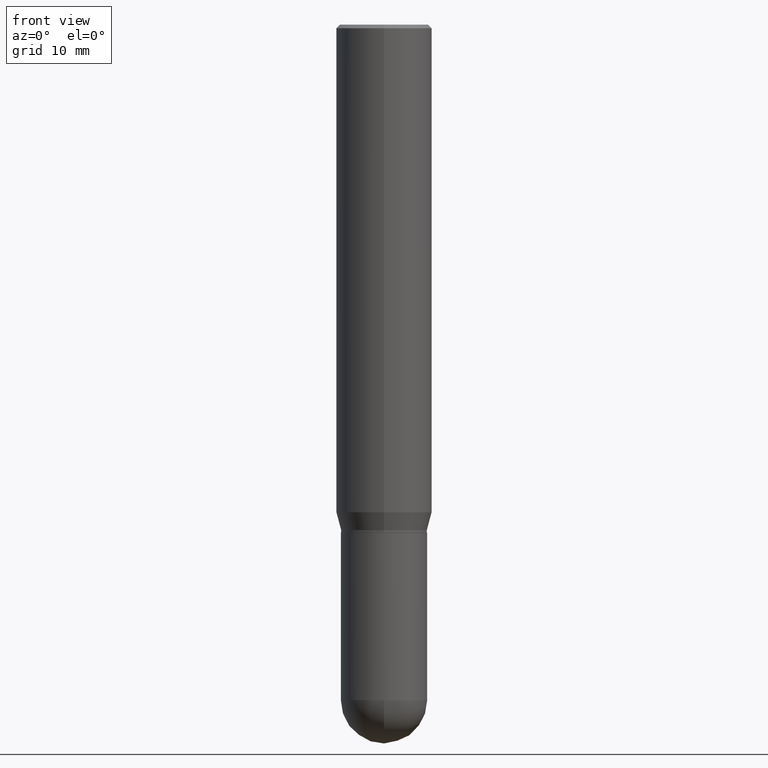
[diagram: clean part render]
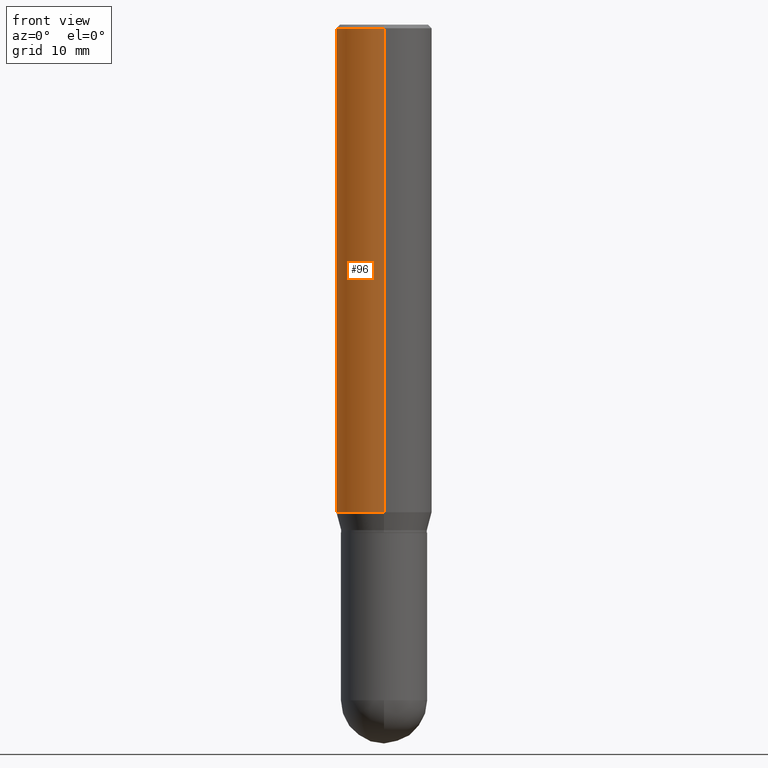
[diagram: same view with one face highlighted and labeled with its STEP entity id]
A machine part, front view. The second image highlights one B-rep face of the part: STEP entity #96.
In plain terms, the highlighted cylindrical surface (partial cylindrical patch) has radius 5 mm, axis along (-0, 0, 1).
Its self-contained STEP definition (entity closure, byte-faithful):
#5 = VECTOR ( 'NONE', #430, 39.37007874015748143 ) ;
#8 = EDGE_CURVE ( 'NONE', #156, #413, #419, .T. ) ;
#14 = VECTOR ( 'NONE', #498, 39.37007874015748143 ) ;
#33 = ORIENTED_EDGE ( 'NONE', *, *, #154, .T. ) ;
#40 = CIRCLE ( 'NONE', #283, 0.1968500000000000250 ) ;
#55 = AXIS2_PLACEMENT_3D ( 'NONE', #252, #136, #333 ) ;
#78 = CARTESIAN_POINT ( 'NONE',  ( 3.668787700533860766E-31, -5.236384983519334795E-17, -0.01500000000000086854 ) ) ;
#96 = ADVANCED_FACE ( 'NONE', ( #242 ), #160, .T. ) ;
#111 = EDGE_LOOP ( 'NONE', ( #129, #402, #33, #411 ) ) ;
#114 = CARTESIAN_POINT ( 'NONE',  ( 0.000000000000000000, 0.000000000000000000, 0.000000000000000000 ) ) ;
#122 = DIRECTION ( 'NONE',  ( -6.982962677686265922E-15, -1.000000000000000000, 3.490923322346020394E-15 ) ) ;
#129 = ORIENTED_EDGE ( 'NONE', *, *, #8, .F. ) ;
#136 = DIRECTION ( 'NONE',  ( -2.445858467022432184E-29, 3.490923322346020788E-15, 1.000000000000000000 ) ) ;
#142 = CARTESIAN_POINT ( 'NONE',  ( 1.398703375343806303E-15, 0.1968499999999999139, -0.01500000000000155549 ) ) ;
#154 = EDGE_CURVE ( 'NONE', #275, #453, #363, .T. ) ;
#156 = VERTEX_POINT ( 'NONE', #324 ) ;
#160 = CYLINDRICAL_SURFACE ( 'NONE', #442, 0.1968499999999999694 ) ;
#163 = CARTESIAN_POINT ( 'NONE',  ( -1.374596203102541214E-15, -0.1968499999999999694, 6.871882560038140128E-16 ) ) ;
#165 = DIRECTION ( 'NONE',  ( -2.445858467022432184E-29, 3.490923322346020788E-15, 1.000000000000000000 ) ) ;
#166 = EDGE_CURVE ( 'NONE', #413, #453, #40, .T. ) ;
#168 = DIRECTION ( 'NONE',  ( -2.445858467022432184E-29, 3.490923322346020788E-15, 1.000000000000000000 ) ) ;
#235 = EDGE_CURVE ( 'NONE', #156, #275, #293, .T. ) ;
#242 = FACE_OUTER_BOUND ( 'NONE', #111, .T. ) ;
#252 = CARTESIAN_POINT ( 'NONE',  ( 4.899491337544596904E-29, -6.992942890390830746E-15, -2.003178599090893464 ) ) ;
#275 = VERTEX_POINT ( 'NONE', #451 ) ;
#283 = AXIS2_PLACEMENT_3D ( 'NONE', #78, #165, #392 ) ;
#293 = CIRCLE ( 'NONE', #55, 0.1968499999999999694 ) ;
#324 = CARTESIAN_POINT ( 'NONE',  ( 1.398703375343805514E-15, 0.1968499999999929750, -2.003178599090894352 ) ) ;
#333 = DIRECTION ( 'NONE',  ( -6.982962677686265922E-15, -1.000000000000000000, 4.163344669033675634E-15 ) ) ;
#354 = CARTESIAN_POINT ( 'NONE',  ( 1.398703375343756802E-15, 0.1968499999999999694, -6.871882560038140128E-16 ) ) ;
#363 = LINE ( 'NONE', #163, #5 ) ;
#392 = DIRECTION ( 'NONE',  ( -6.982962677686265133E-15, -1.000000000000000000, 3.491137977679279424E-15 ) ) ;
#402 = ORIENTED_EDGE ( 'NONE', *, *, #235, .T. ) ;
#411 = ORIENTED_EDGE ( 'NONE', *, *, #166, .F. ) ;
#413 = VERTEX_POINT ( 'NONE', #142 ) ;
#419 = LINE ( 'NONE', #354, #14 ) ;
#430 = DIRECTION ( 'NONE',  ( -2.445858467022432184E-29, 3.490923322346021182E-15, 1.000000000000000000 ) ) ;
#442 = AXIS2_PLACEMENT_3D ( 'NONE', #114, #168, #122 ) ;
#451 = CARTESIAN_POINT ( 'NONE',  ( -1.374596203102492502E-15, -0.1968500000000069916, -2.003178599090893020 ) ) ;
#453 = VERTEX_POINT ( 'NONE', #463 ) ;
#463 = CARTESIAN_POINT ( 'NONE',  ( -1.374596203102541017E-15, -0.1968500000000000805, -0.01500000000000018159 ) ) ;
#498 = DIRECTION ( 'NONE',  ( -2.445858467022432184E-29, 3.490923322346021182E-15, 1.000000000000000000 ) ) ;